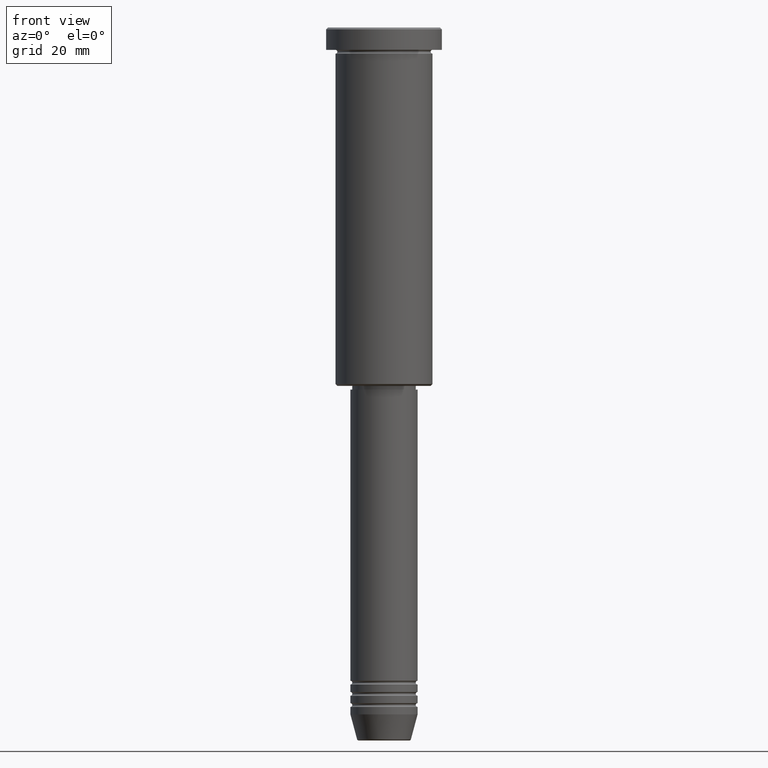
[diagram: clean part render]
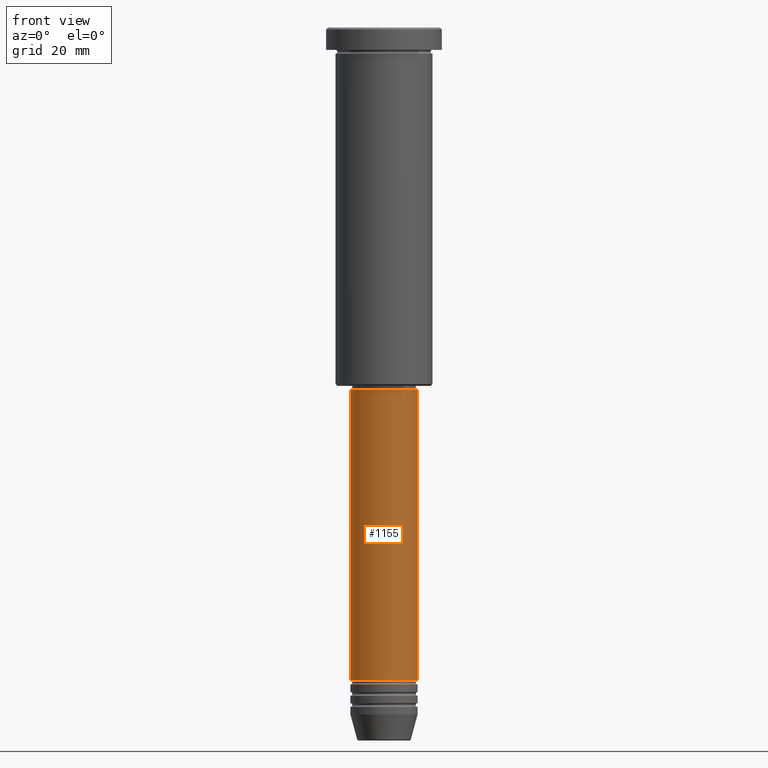
[diagram: same view with one face highlighted and labeled with its STEP entity id]
A machine part, front view. The second image highlights one B-rep face of the part: STEP entity #1155.
In plain terms, the highlighted cylindrical surface (edge-blend (fillet) strip) has radius 9 mm, axis along (-0, -0, 1).
Its self-contained STEP definition (entity closure, byte-faithful):
#18 = EDGE_CURVE ( 'NONE', #261, #1147, #150, .T. ) ;
#22 = CYLINDRICAL_SURFACE ( 'NONE', #685, 9.000000000000000000 ) ;
#109 = FACE_OUTER_BOUND ( 'NONE', #986, .T. ) ;
#139 = CARTESIAN_POINT ( 'NONE',  ( -9.000000000000000000, 1.102182119232617714E-15, -175.0000000000000000 ) ) ;
#150 = LINE ( 'NONE', #238, #580 ) ;
#238 = CARTESIAN_POINT ( 'NONE',  ( -9.000000000000000000, 1.102182119232617714E-15, 0.000000000000000000 ) ) ;
#257 = VERTEX_POINT ( 'NONE', #597 ) ;
#261 = VERTEX_POINT ( 'NONE', #139 ) ;
#307 = ORIENTED_EDGE ( 'NONE', *, *, #18, .F. ) ;
#317 = ORIENTED_EDGE ( 'NONE', *, *, #838, .F. ) ;
#358 = AXIS2_PLACEMENT_3D ( 'NONE', #511, #983, #1151 ) ;
#388 = CARTESIAN_POINT ( 'NONE',  ( 0.000000000000000000, 0.000000000000000000, 0.000000000000000000 ) ) ;
#404 = ORIENTED_EDGE ( 'NONE', *, *, #918, .T. ) ;
#494 = DIRECTION ( 'NONE',  ( 1.000000000000000000, 0.000000000000000000, 0.000000000000000000 ) ) ;
#501 = CARTESIAN_POINT ( 'NONE',  ( 9.000000000000000000, 0.000000000000000000, 0.000000000000000000 ) ) ;
#503 = AXIS2_PLACEMENT_3D ( 'NONE', #704, #710, #494 ) ;
#511 = CARTESIAN_POINT ( 'NONE',  ( 0.000000000000000000, 0.000000000000000000, -175.0000000000000000 ) ) ;
#573 = EDGE_CURVE ( 'NONE', #261, #257, #862, .T. ) ;
#580 = VECTOR ( 'NONE', #699, 1000.000000000000000 ) ;
#597 = CARTESIAN_POINT ( 'NONE',  ( 9.000000000000000000, 0.000000000000000000, -175.0000000000000000 ) ) ;
#598 = CARTESIAN_POINT ( 'NONE',  ( 9.000000000000000000, 0.000000000000000000, -97.00000000000002842 ) ) ;
#685 = AXIS2_PLACEMENT_3D ( 'NONE', #388, #753, #738 ) ;
#699 = DIRECTION ( 'NONE',  ( -0.000000000000000000, -0.000000000000000000, 1.000000000000000000 ) ) ;
#704 = CARTESIAN_POINT ( 'NONE',  ( 0.000000000000000000, 0.000000000000000000, -97.00000000000002842 ) ) ;
#710 = DIRECTION ( 'NONE',  ( -0.000000000000000000, -0.000000000000000000, 1.000000000000000000 ) ) ;
#738 = DIRECTION ( 'NONE',  ( 1.000000000000000000, 0.000000000000000000, 0.000000000000000000 ) ) ;
#753 = DIRECTION ( 'NONE',  ( -0.000000000000000000, -0.000000000000000000, 1.000000000000000000 ) ) ;
#805 = CARTESIAN_POINT ( 'NONE',  ( -9.000000000000000000, 1.102182119232617714E-15, -97.00000000000002842 ) ) ;
#835 = DIRECTION ( 'NONE',  ( -0.000000000000000000, -0.000000000000000000, 1.000000000000000000 ) ) ;
#838 = EDGE_CURVE ( 'NONE', #1147, #967, #1022, .T. ) ;
#862 = CIRCLE ( 'NONE', #358, 9.000000000000000000 ) ;
#918 = EDGE_CURVE ( 'NONE', #257, #967, #963, .T. ) ;
#963 = LINE ( 'NONE', #501, #970 ) ;
#967 = VERTEX_POINT ( 'NONE', #598 ) ;
#970 = VECTOR ( 'NONE', #835, 1000.000000000000000 ) ;
#983 = DIRECTION ( 'NONE',  ( -0.000000000000000000, -0.000000000000000000, 1.000000000000000000 ) ) ;
#986 = EDGE_LOOP ( 'NONE', ( #307, #1009, #404, #317 ) ) ;
#1009 = ORIENTED_EDGE ( 'NONE', *, *, #573, .T. ) ;
#1022 = CIRCLE ( 'NONE', #503, 9.000000000000000000 ) ;
#1147 = VERTEX_POINT ( 'NONE', #805 ) ;
#1151 = DIRECTION ( 'NONE',  ( 1.000000000000000000, 0.000000000000000000, 0.000000000000000000 ) ) ;
#1155 = ADVANCED_FACE ( 'NONE', ( #109 ), #22, .T. ) ;